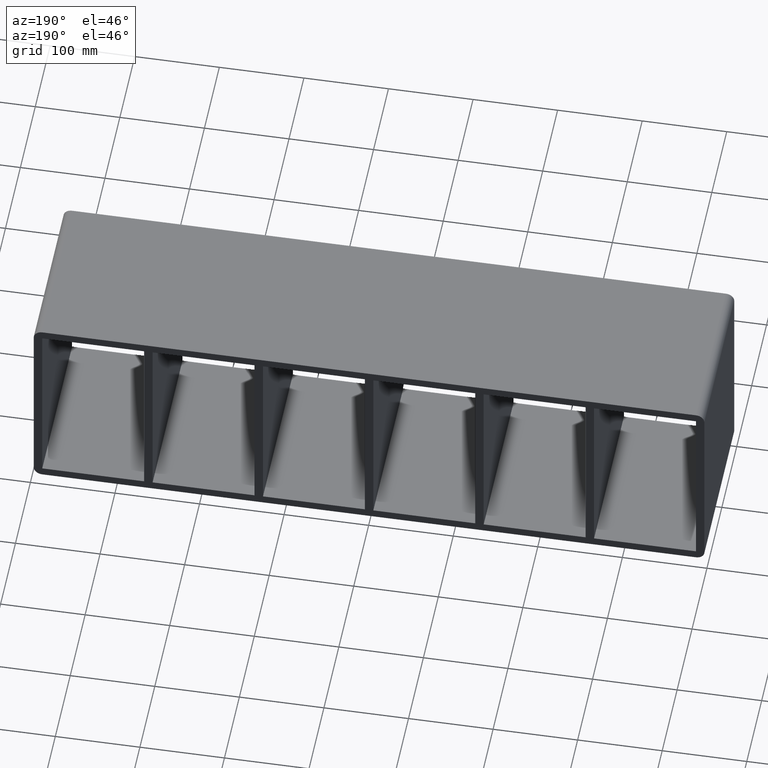
[diagram: clean part render]
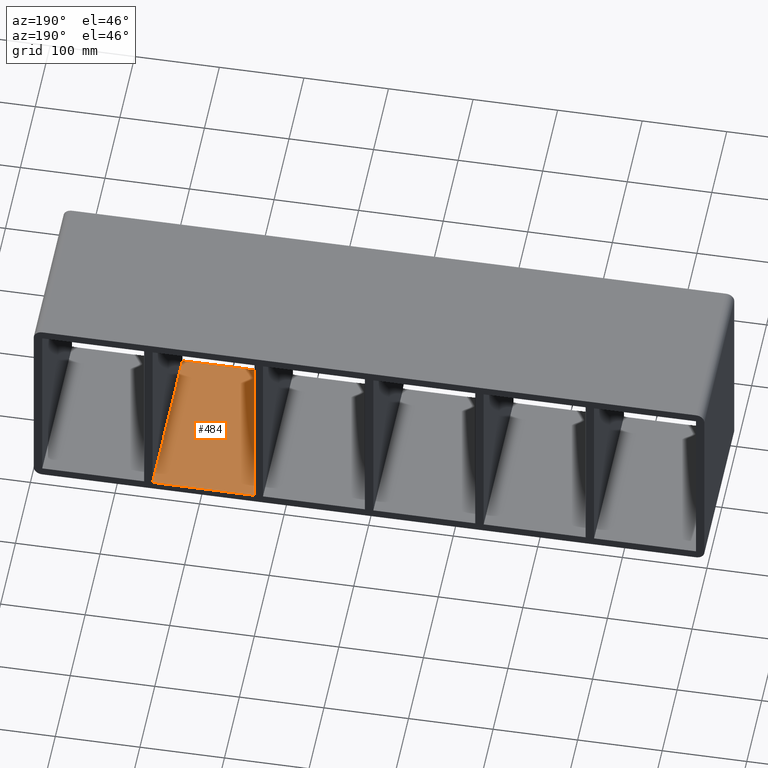
[diagram: same view with one face highlighted and labeled with its STEP entity id]
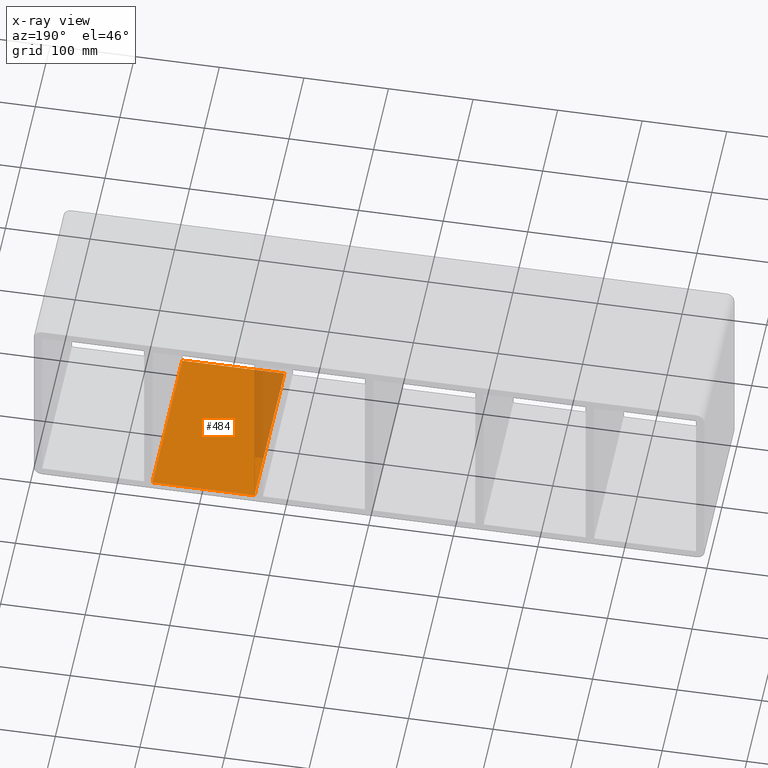
[diagram: x-ray of the same camera — body ghosted, the highlighted face saturated]
A machine part, auxiliary view. The second image highlights one B-rep face of the part: STEP entity #484.
The next image is the same camera in x-ray: the body ghosted, the highlighted face saturated — about 13% of this face is hidden behind the body in this view.
In plain terms, the highlighted planar face has unit normal (0, 0, -1).
Its self-contained STEP definition (entity closure, byte-faithful):
#73=CARTESIAN_POINT('',(255.99999999999883,-3.0,-109.0));
#74=VERTEX_POINT('',#73);
#91=CARTESIAN_POINT('',(255.99999999999883,197.0,-109.0));
#92=VERTEX_POINT('',#91);
#99=CARTESIAN_POINT('',(255.99999999999881,-3.0,-109.0));
#100=DIRECTION('',(0.0,1.0,0.0));
#101=VECTOR('',#100,199.99999999999997);
#102=LINE('',#99,#101);
#103=EDGE_CURVE('',#74,#92,#102,.T.);
#195=CARTESIAN_POINT('',(135.50000000001461,-3.0,-108.99999999997137));
#196=VERTEX_POINT('',#195);
#203=CARTESIAN_POINT('',(135.50000000001461,197.0,-108.99999999997137));
#204=VERTEX_POINT('',#203);
#205=CARTESIAN_POINT('',(135.50000000001461,196.99999999999997,-109.0));
#206=DIRECTION('',(0.0,-1.0,0.0));
#207=VECTOR('',#206,199.99999999999997);
#208=LINE('',#205,#207);
#209=EDGE_CURVE('',#204,#196,#208,.T.);
#463=CARTESIAN_POINT('',(386.50000000000006,0.0,-109.0));
#464=DIRECTION('',(0.0,0.0,-1.0));
#465=DIRECTION('',(-1.0,0.0,0.0));
#466=AXIS2_PLACEMENT_3D('',#463,#464,#465);
#467=PLANE('',#466);
#468=ORIENTED_EDGE('',*,*,#103,.T.);
#469=CARTESIAN_POINT('',(135.50000000001461,197.0,-109.0));
#470=DIRECTION('',(1.0,0.0,0.0));
#471=VECTOR('',#470,120.49999999998423);
#472=LINE('',#469,#471);
#473=EDGE_CURVE('',#204,#92,#472,.T.);
#474=ORIENTED_EDGE('',*,*,#473,.F.);
#475=ORIENTED_EDGE('',*,*,#209,.T.);
#476=CARTESIAN_POINT('',(255.99999999999883,-3.0,-109.0));
#477=DIRECTION('',(-1.0,0.0,0.0));
#478=VECTOR('',#477,120.49999999998423);
#479=LINE('',#476,#478);
#480=EDGE_CURVE('',#74,#196,#479,.T.);
#481=ORIENTED_EDGE('',*,*,#480,.F.);
#482=EDGE_LOOP('',(#468,#474,#475,#481));
#483=FACE_OUTER_BOUND('',#482,.T.);
#484=ADVANCED_FACE('',(#483),#467,.F.);